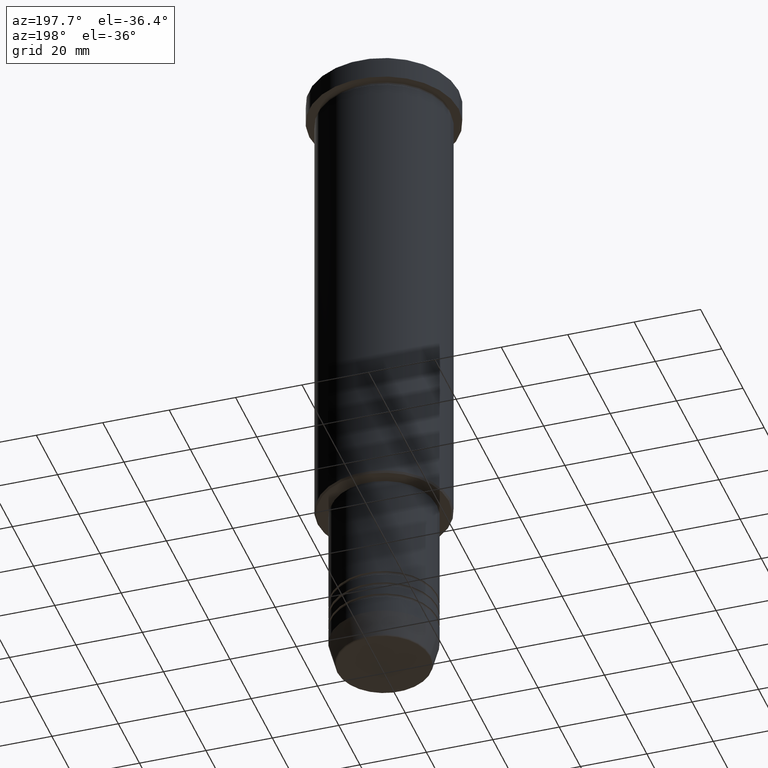
[diagram: clean part render]
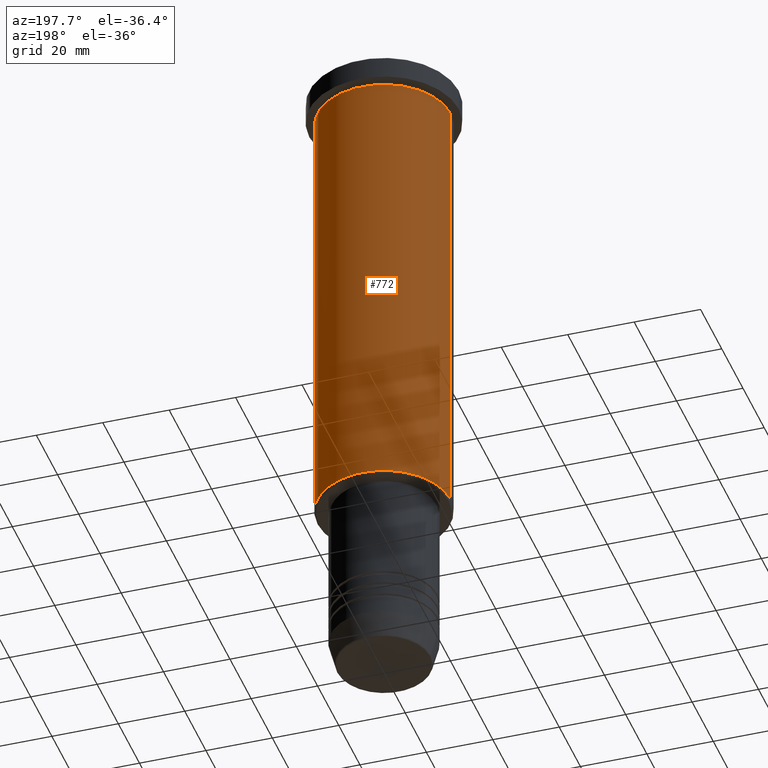
[diagram: same view with one face highlighted and labeled with its STEP entity id]
A machine part, auxiliary view. The second image highlights one B-rep face of the part: STEP entity #772.
In plain terms, the highlighted cylindrical surface (partial cylindrical patch) has radius 20 mm, axis along (-0, -0, 1).
Its self-contained STEP definition (entity closure, byte-faithful):
#5 = DIRECTION ( 'NONE',  ( -0.000000000000000000, -0.000000000000000000, 1.000000000000000000 ) ) ;
#29 = LINE ( 'NONE', #127, #46 ) ;
#38 = AXIS2_PLACEMENT_3D ( 'NONE', #1108, #5, #365 ) ;
#43 = EDGE_CURVE ( 'NONE', #49, #484, #553, .T. ) ;
#46 = VECTOR ( 'NONE', #947, 1000.000000000000000 ) ;
#49 = VERTEX_POINT ( 'NONE', #732 ) ;
#70 = VERTEX_POINT ( 'NONE', #747 ) ;
#127 = CARTESIAN_POINT ( 'NONE',  ( -20.00000000000000355, 2.449293598294706907E-15, 0.000000000000000000 ) ) ;
#136 = EDGE_CURVE ( 'NONE', #545, #49, #1122, .T. ) ;
#182 = AXIS2_PLACEMENT_3D ( 'NONE', #957, #519, #897 ) ;
#213 = CYLINDRICAL_SURFACE ( 'NONE', #1010, 20.00000000000000355 ) ;
#280 = ORIENTED_EDGE ( 'NONE', *, *, #43, .F. ) ;
#365 = DIRECTION ( 'NONE',  ( 1.000000000000000000, 0.000000000000000000, 0.000000000000000000 ) ) ;
#392 = EDGE_CURVE ( 'NONE', #545, #70, #698, .T. ) ;
#398 = DIRECTION ( 'NONE',  ( -0.000000000000000000, -0.000000000000000000, 1.000000000000000000 ) ) ;
#484 = VERTEX_POINT ( 'NONE', #1088 ) ;
#519 = DIRECTION ( 'NONE',  ( -0.000000000000000000, -0.000000000000000000, 1.000000000000000000 ) ) ;
#545 = VERTEX_POINT ( 'NONE', #902 ) ;
#553 = CIRCLE ( 'NONE', #38, 20.00000000000000000 ) ;
#562 = CARTESIAN_POINT ( 'NONE',  ( 20.00000000000000355, 0.000000000000000000, 0.000000000000000000 ) ) ;
#581 = CARTESIAN_POINT ( 'NONE',  ( 0.000000000000000000, 0.000000000000000000, 0.000000000000000000 ) ) ;
#637 = EDGE_LOOP ( 'NONE', ( #964, #1003, #280, #684 ) ) ;
#684 = ORIENTED_EDGE ( 'NONE', *, *, #136, .F. ) ;
#698 = CIRCLE ( 'NONE', #182, 20.00000000000000355 ) ;
#732 = CARTESIAN_POINT ( 'NONE',  ( 20.00000000000000000, 0.000000000000000000, -7.999999999999994671 ) ) ;
#747 = CARTESIAN_POINT ( 'NONE',  ( -20.00000000000000355, 2.449293598294706907E-15, -145.5000000000000284 ) ) ;
#768 = DIRECTION ( 'NONE',  ( -0.000000000000000000, -0.000000000000000000, 1.000000000000000000 ) ) ;
#772 = ADVANCED_FACE ( 'NONE', ( #1044 ), #213, .T. ) ;
#897 = DIRECTION ( 'NONE',  ( -1.000000000000000000, 0.000000000000000000, 0.000000000000000000 ) ) ;
#902 = CARTESIAN_POINT ( 'NONE',  ( 20.00000000000000355, 0.000000000000000000, -145.5000000000000284 ) ) ;
#909 = VECTOR ( 'NONE', #768, 1000.000000000000000 ) ;
#947 = DIRECTION ( 'NONE',  ( -0.000000000000000000, -0.000000000000000000, 1.000000000000000000 ) ) ;
#957 = CARTESIAN_POINT ( 'NONE',  ( 0.000000000000000000, 0.000000000000000000, -145.5000000000000284 ) ) ;
#964 = ORIENTED_EDGE ( 'NONE', *, *, #392, .T. ) ;
#980 = DIRECTION ( 'NONE',  ( 1.000000000000000000, 0.000000000000000000, 0.000000000000000000 ) ) ;
#1003 = ORIENTED_EDGE ( 'NONE', *, *, #1161, .T. ) ;
#1010 = AXIS2_PLACEMENT_3D ( 'NONE', #581, #398, #980 ) ;
#1044 = FACE_OUTER_BOUND ( 'NONE', #637, .T. ) ;
#1088 = CARTESIAN_POINT ( 'NONE',  ( -20.00000000000000000, 2.449293598294706513E-15, -7.999999999999994671 ) ) ;
#1108 = CARTESIAN_POINT ( 'NONE',  ( 0.000000000000000000, 0.000000000000000000, -7.999999999999994671 ) ) ;
#1122 = LINE ( 'NONE', #562, #909 ) ;
#1161 = EDGE_CURVE ( 'NONE', #70, #484, #29, .T. ) ;